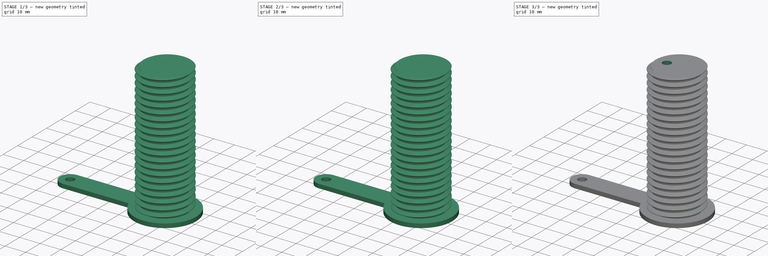
[diagram: build sequence overview — one tinted view per stage of 3, left to right]
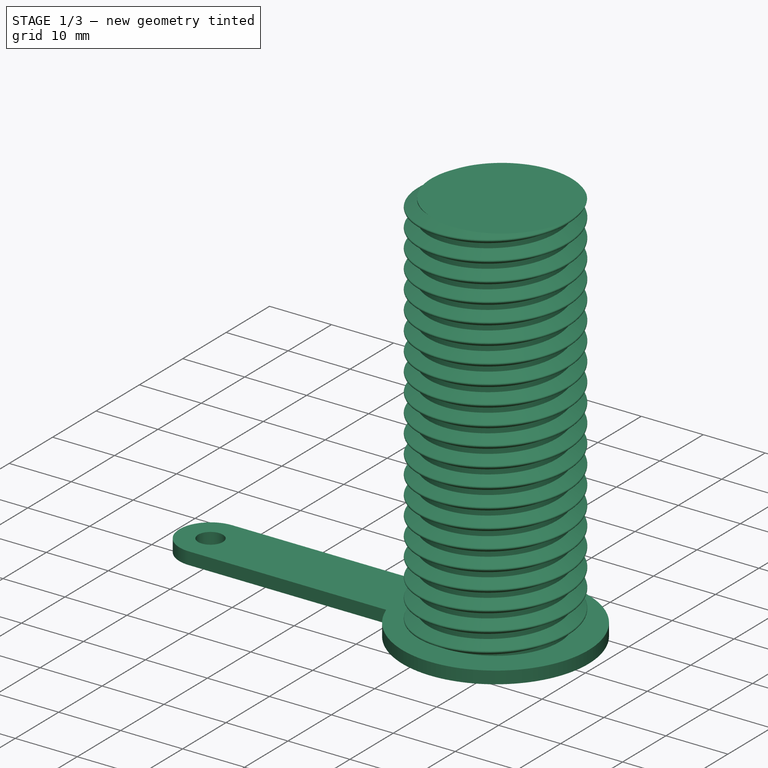
[diagram: stage 1 of 3 — iso view after this stage's code; geometry added in this stage tinted green]
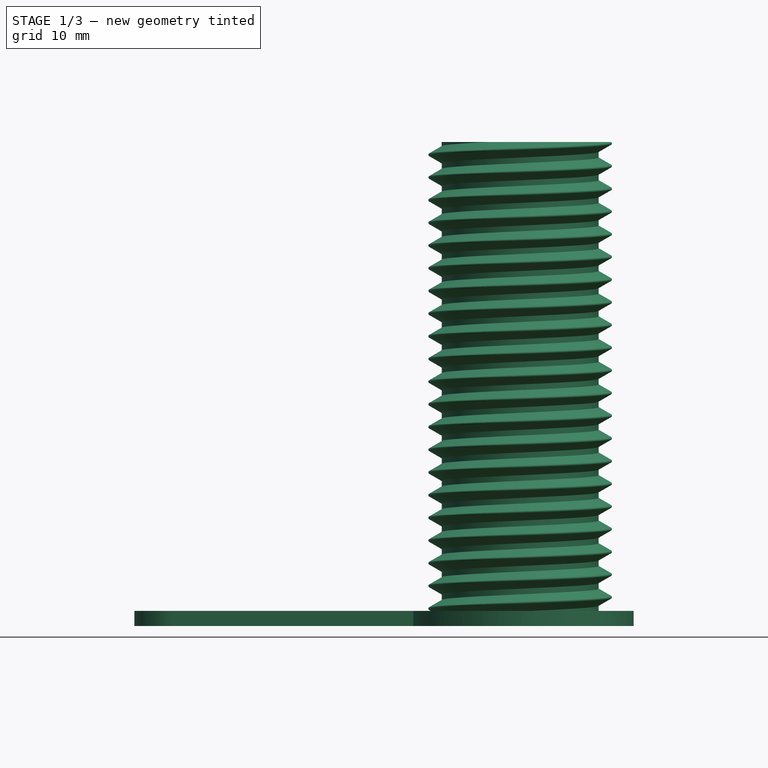
[diagram: stage 1 of 3 — front view after this stage's code; geometry added in this stage tinted green]
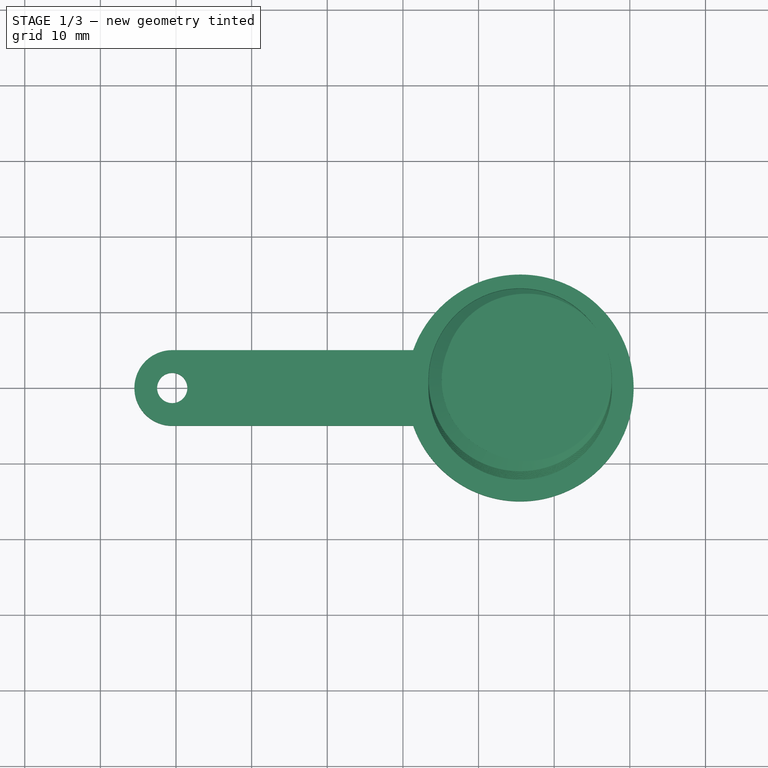
[diagram: stage 1 of 3 — top view after this stage's code; geometry added in this stage tinted green]
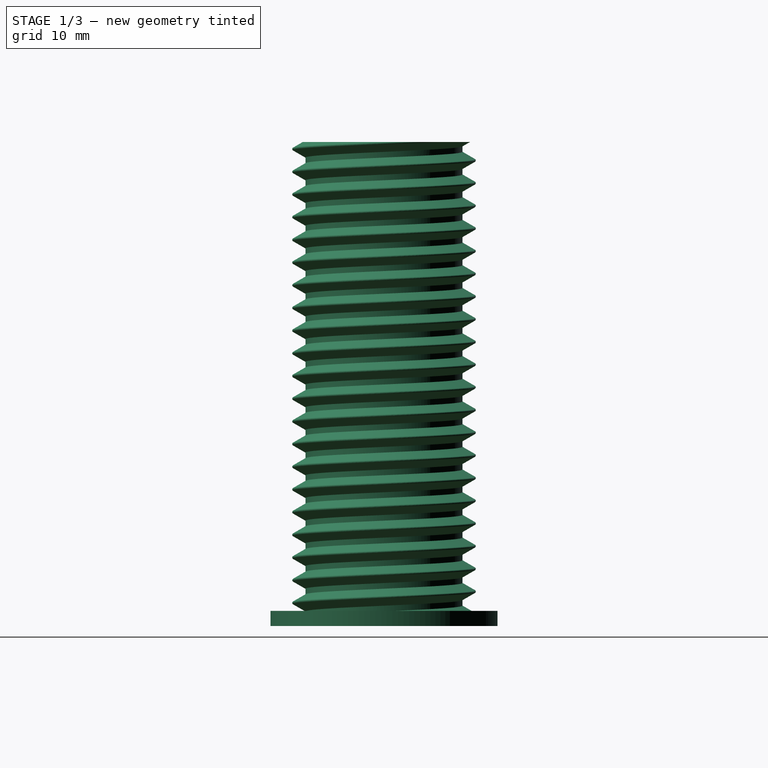
[diagram: stage 1 of 3 — right view after this stage's code; geometry added in this stage tinted green]
FCSTD DOCUMENT  (FreeCAD 0.18R13661 (Git))
Label: CounterweightBase_M24
License: All rights reserved
LicenseURL: http://en.wikipedia.org/wiki/All_rights_reserved
objects: Sketcher::SketchObject×2, PartDesign::Body×2, PartDesign::Pad×1, Part::FeaturePython×1, Part::Fuse×1, PartDesign::FeatureBase×1, PartDesign::Pocket×1
note: 11 computed .brp shape members not serialized (recipe doc carries the construction recipe); baked Part::Feature solids carry a one-line shape summary decoded from their .brp

FEATURE [Sketcher::SketchObject] Sketch  label="BaseSketch"
  MapMode = 5
  Support = -> [XY_Plane]
  sketch-geometry (12):
    g0: LineSegment StartX=-20.5 StartY=5 StartZ=0 EndX=11.3579 EndY=5 EndZ=0
    g1: LineSegment [constr] StartX=20.5 StartY=5 StartZ=0 EndX=20.5 EndY=0 EndZ=0
    g2: LineSegment [constr] StartX=-20.5 StartY=0 StartZ=0 EndX=-20.5 EndY=5 EndZ=0
    g3: LineSegment [constr] StartX=20.5 StartY=0 StartZ=0 EndX=20.5 EndY=-5 EndZ=0
    g4: LineSegment StartX=11.3579 StartY=-5 StartZ=0 EndX=-20.5 EndY=-5 EndZ=0
    g5: LineSegment [constr] StartX=-20.5 StartY=-5 StartZ=0 EndX=-20.5 EndY=0 EndZ=0
    g6: ArcOfCircle CenterX=-20.5 CenterY=0 CenterZ=0 NormalX=0 NormalY=0 NormalZ=1 AngleXU=0 Radius=5 StartAngle=1.5708 EndAngle=4.71239
    g7: ArcOfCircle CenterX=25.5 CenterY=0 CenterZ=0 NormalX=0 NormalY=0 NormalZ=1 AngleXU=0 Radius=15 StartAngle=3.48143 EndAngle=9.08494
    g8: LineSegment [constr] StartX=11.3579 StartY=5 StartZ=0 EndX=20.5 EndY=5 EndZ=0
    g9: LineSegment [constr] StartX=11.3579 StartY=-5 StartZ=0 EndX=20.5 EndY=-5 EndZ=0
    g10: Circle CenterX=-20.5 CenterY=0 CenterZ=0 NormalX=0 NormalY=0 NormalZ=1 AngleXU=0 Radius=2
    g11: Circle CenterX=20.5 CenterY=0 CenterZ=0 NormalX=0 NormalY=0 NormalZ=1 AngleXU=0 Radius=0.5
  constraints (32):
    c: Coincident(g2,g0)
    c: Horizontal(g0)
    c: Vertical(g1)
    c: Vertical(g2)
    c: Coincident(g4,g5)
    c: Horizontal(g4)
    c: Vertical(g3)
    c: Vertical(g5)
    c: Coincident(g2,g5)
    c: Coincident(g1,g3)
    c: Symmetric(g1,g2,g-2)
    c: Distance(g4,g0) = 10
    c: Coincident(g6,g2)
    c: Coincident(g6,g0)
    c: Coincident(g6,g4)
    c: Coincident(g0,g7)
    c: Coincident(g8,g0)
    c: Coincident(g8,g1)
    c: Horizontal(g8)
    c: Coincident(g4,g7)
    c: Coincident(g9,g4)
    c: Coincident(g9,g3)
    c: Horizontal(g9)
    c: Distance(g0,g1) = 41
    c: PointOnObject(g1,g-1)
    c: PointOnObject(g7,g-1)
    c: Distance(g1,g7) = 5
    c: Radius(g7) = 15
    c: Coincident(g10,g2)
    c: Coincident(g11,g1)
    c: Radius(g11) = 0.5
    c: Radius(g10) = 2
FEATURE [PartDesign::Pad] Pad  label="BasePad"
  Length = 2
  Length2 = 100
  Profile = -> Sketch
  Type = 0
FEATURE [PartDesign::Body] Body  label="BaseBody"
  Group = -> [Sketch,Pad]
  Origin = -> Origin
  Tip = -> Pad
FEATURE [Part::FeaturePython] ScrewTap  label="M24x60.0-ScrewTap"  # Fasteners workbench fastener (typed FeaturePython)
  Placement = pos=(25.5,0,1) rot=(1,0,0;3.14159rad)
  diameter = 15
  invert = false
  length = 60
  matchOuter = false
  offset = 0
  thread = true
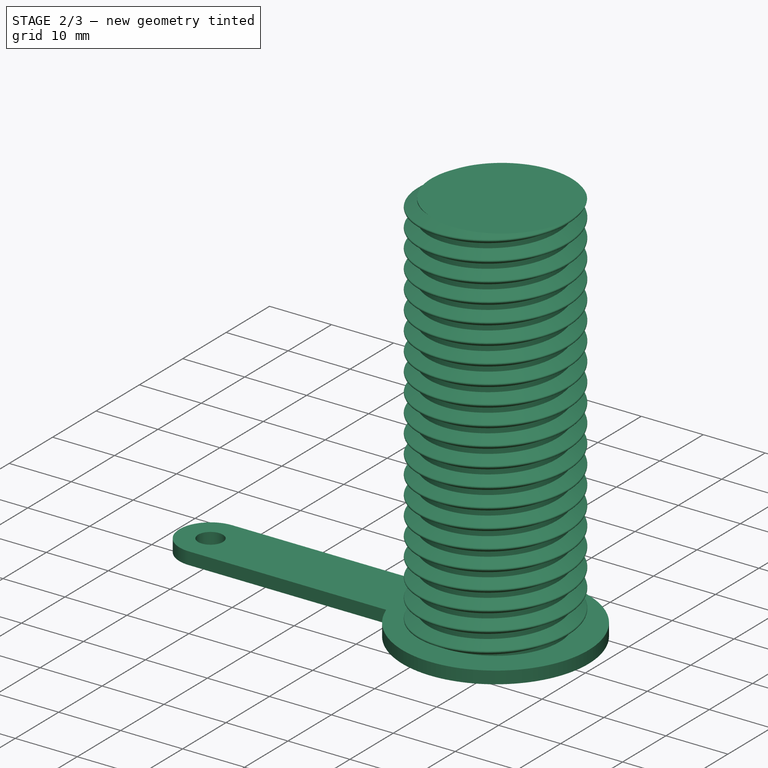
[diagram: stage 2 of 3 — iso view after this stage's code; geometry added in this stage tinted green]
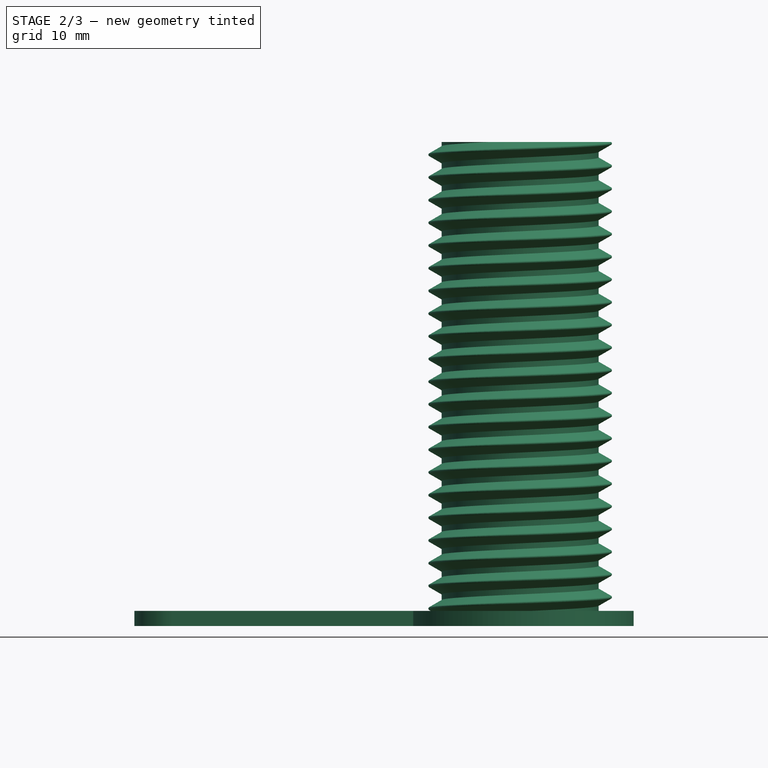
[diagram: stage 2 of 3 — front view after this stage's code; geometry added in this stage tinted green]
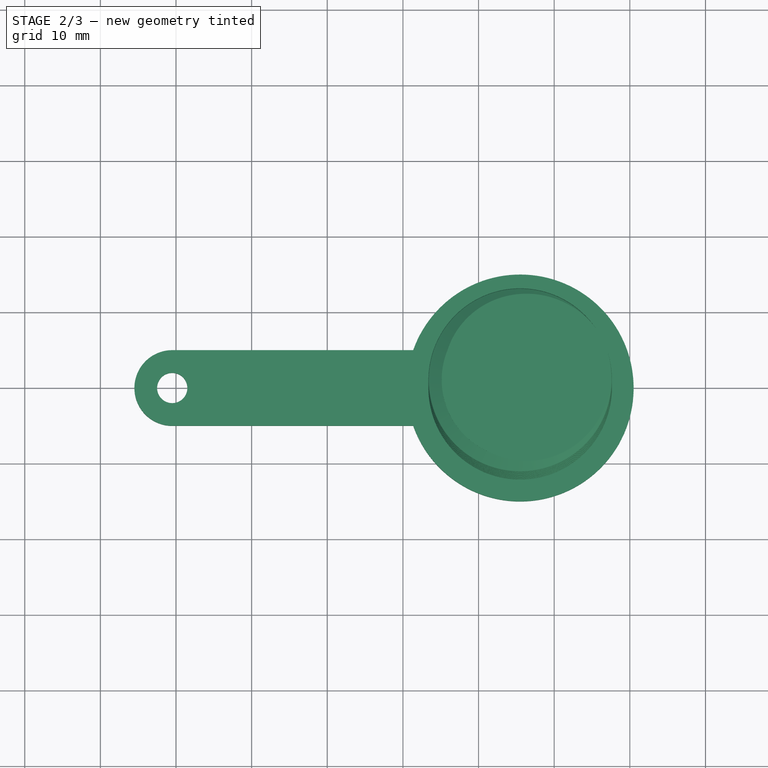
[diagram: stage 2 of 3 — top view after this stage's code; geometry added in this stage tinted green]
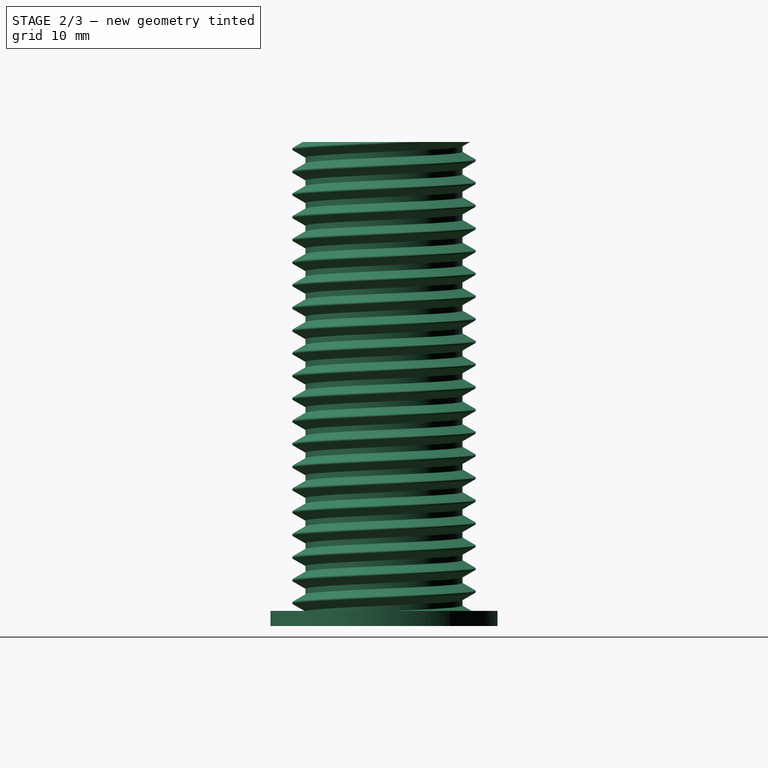
[diagram: stage 2 of 3 — right view after this stage's code; geometry added in this stage tinted green]
FEATURE [Part::Fuse] Fusion  label="BaseFusion"
  Base = -> Body
  Tool = -> ScrewTap
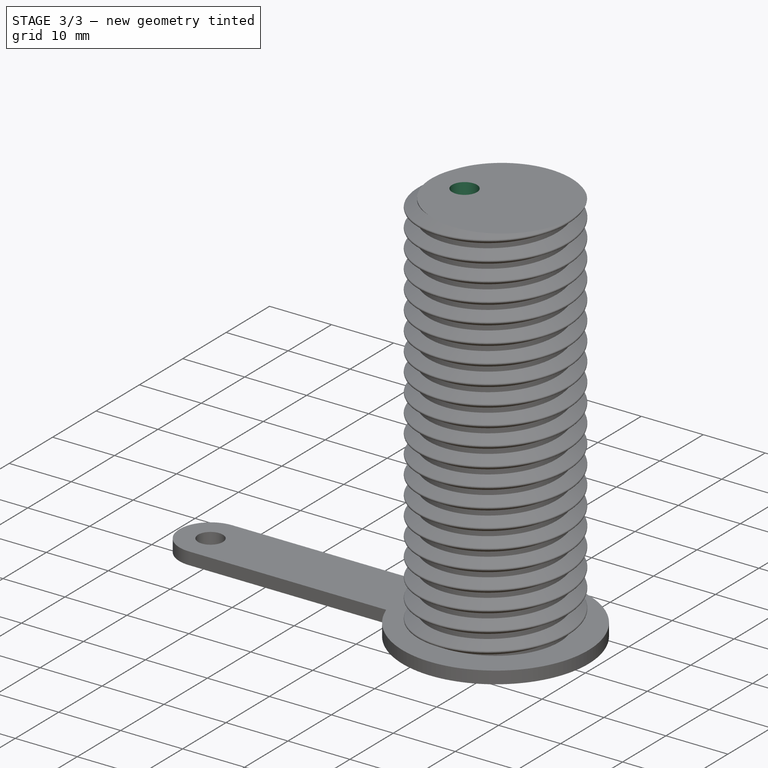
[diagram: stage 3 of 3 — iso view after this stage's code; geometry added in this stage tinted green]
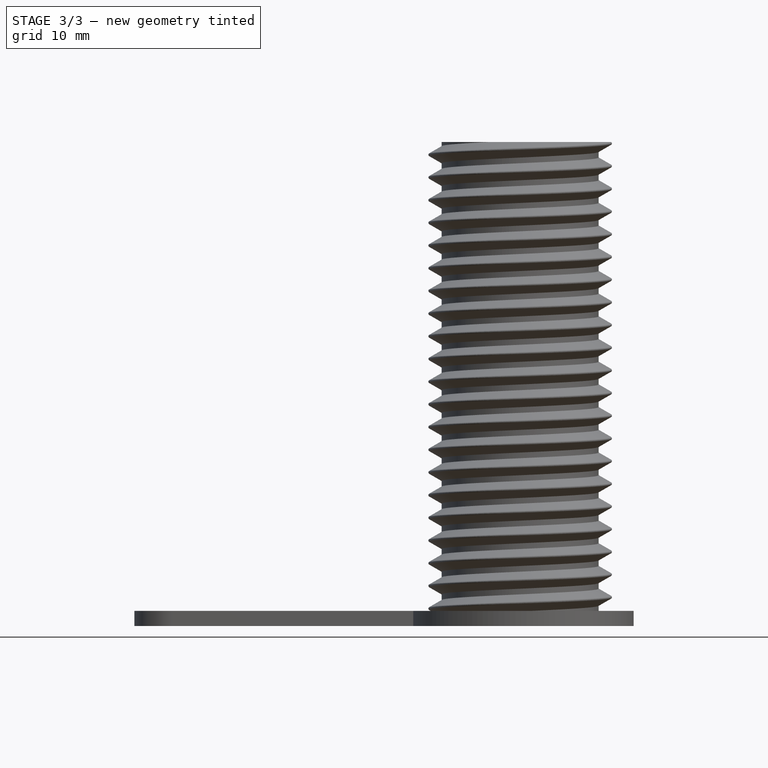
[diagram: stage 3 of 3 — front view after this stage's code; geometry added in this stage tinted green]
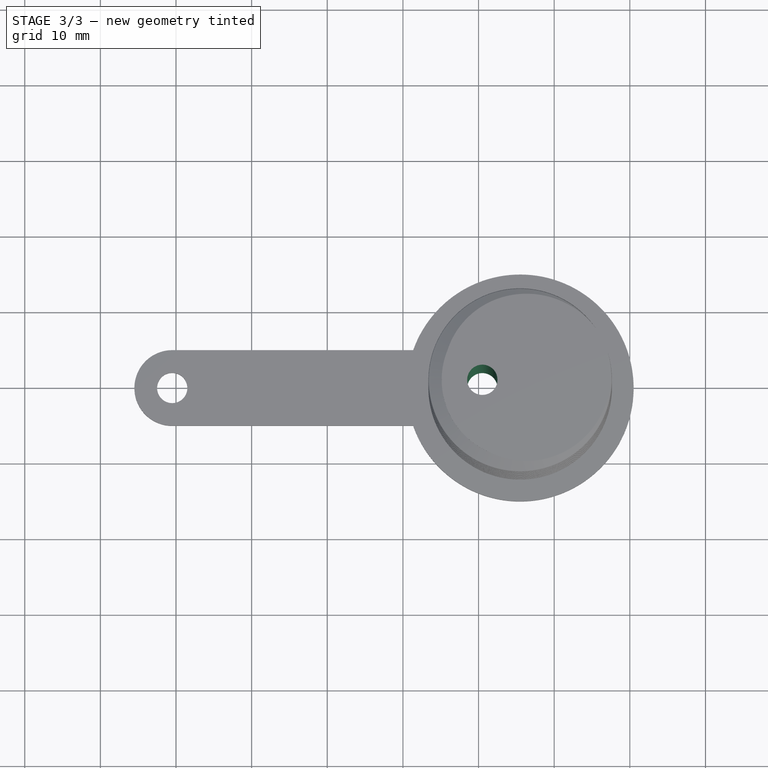
[diagram: stage 3 of 3 — top view after this stage's code; geometry added in this stage tinted green]
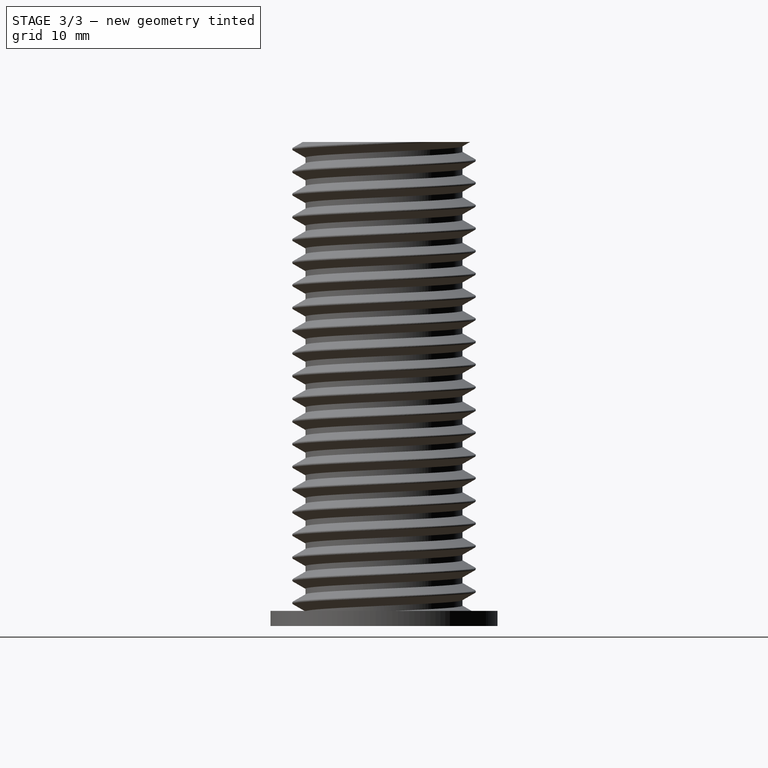
[diagram: stage 3 of 3 — right view after this stage's code; geometry added in this stage tinted green]
FEATURE [PartDesign::FeatureBase] BaseFeature
  BaseFeature = -> Fusion
FEATURE [Sketcher::SketchObject] Sketch001  label="ScrewHoleSketch"
  ExternalGeometry = -> [BaseFeature]
  MapMode = 5
  Support = -> [XY_Plane001]
  sketch-geometry (1):
    g0: Circle CenterX=20.5 CenterY=0 CenterZ=0 NormalX=0 NormalY=0 NormalZ=1 AngleXU=0 Radius=2
  constraints (2):
    c: Coincident(g0,g-3)
    c: Radius(g0) = 2
FEATURE [PartDesign::Pocket] Pocket  label="ScrewPocket"
  BaseFeature = -> BaseFeature
  Length = 50
  Length2 = 100
  Profile = -> Sketch001
  Reversed = true
  Type = 1
FEATURE [PartDesign::Body] Body001  label="ScrewMounting"
  BaseFeature = -> Fusion
  Group = -> [BaseFeature,Sketch001,Pocket]
  Origin = -> Origin001
  Tip = -> Pocket
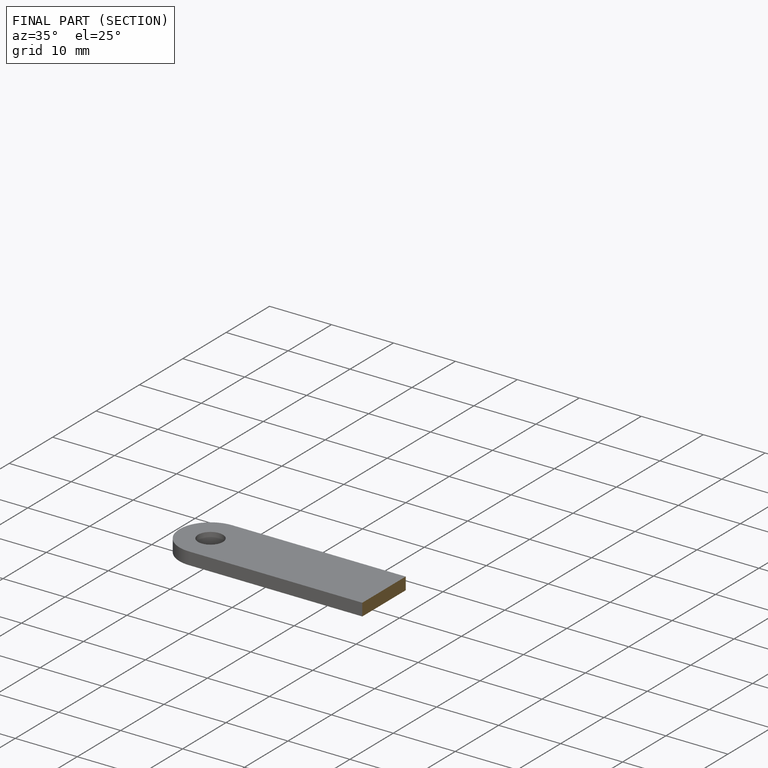
[diagram: finished part — half-section view (interior)]
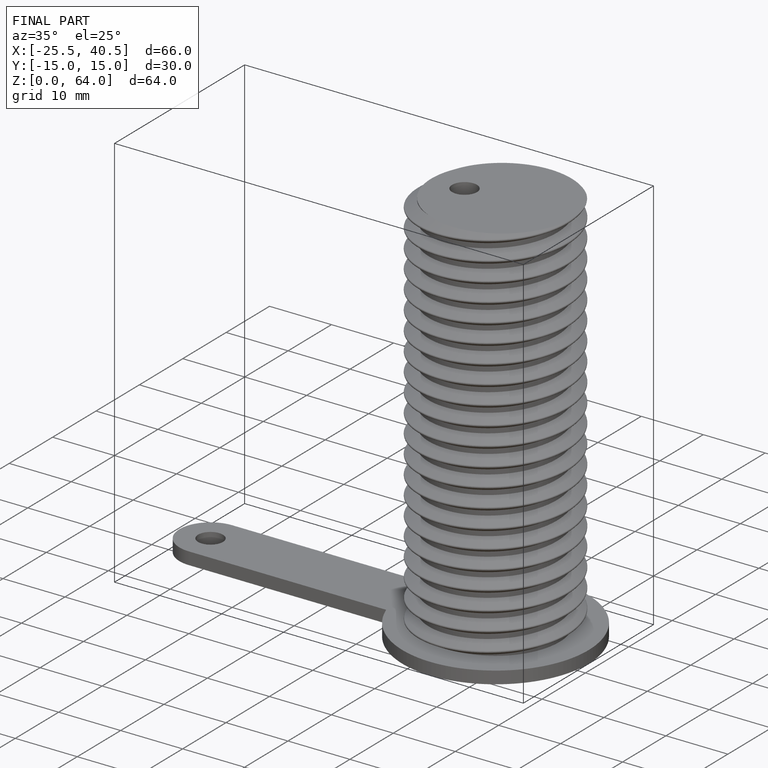
[diagram: finished part — iso view with bounding-box wireframe]
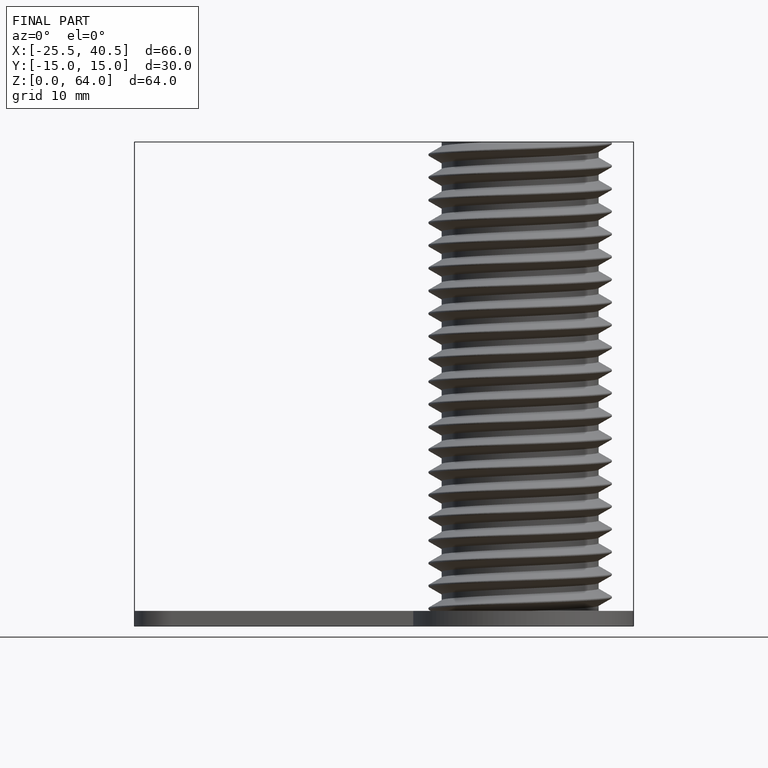
[diagram: finished part — front view with bounding-box wireframe]
